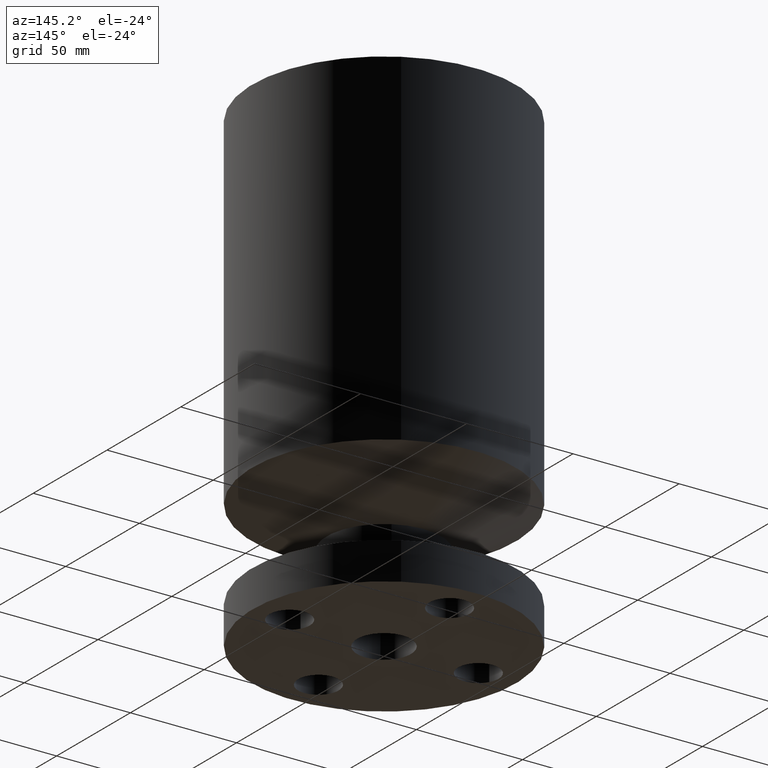
[diagram: clean part render]
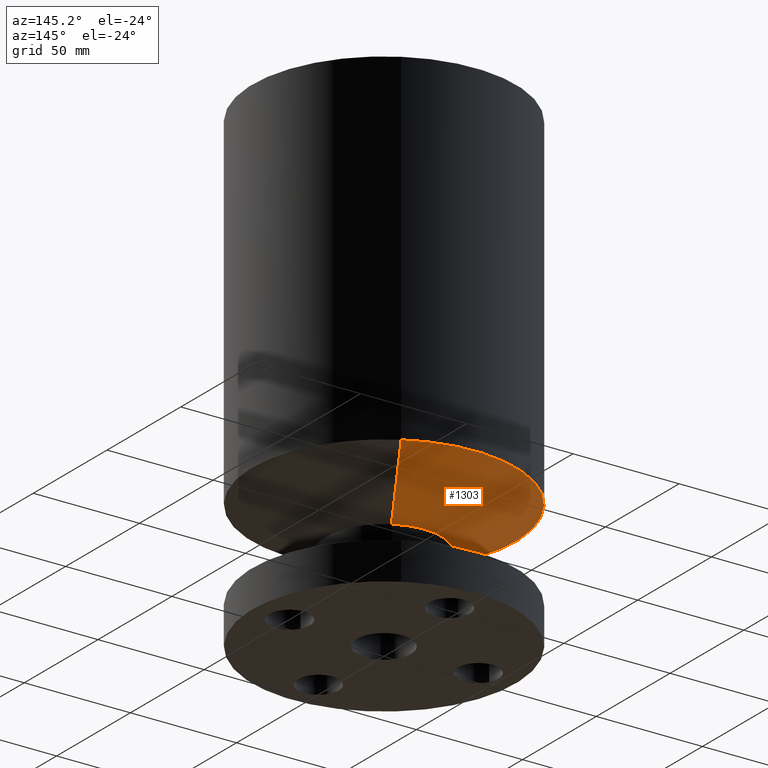
[diagram: same view with one face highlighted and labeled with its STEP entity id]
A machine part, auxiliary view. The second image highlights one B-rep face of the part: STEP entity #1303.
In plain terms, the highlighted conical surface has half-angle 60 deg.
Its self-contained STEP definition (entity closure, byte-faithful):
#738=AXIS2_PLACEMENT_3D('Circle Axis2P3D',#736,#737,$) ;
#1264=AXIS2_PLACEMENT_3D('Cone Axis2P3D',#1261,#1262,#1263) ;
#1294=AXIS2_PLACEMENT_3D('Circle Axis2P3D',#1292,#1293,$) ;
#714=CARTESIAN_POINT('Vertex',(0.508191070922,0.930237515608,1.57000000001)) ;
#721=CARTESIAN_POINT('Vertex',(-0.508191070922,-0.930237515608,1.57000000001)) ;
#736=CARTESIAN_POINT('Axis2P3D Location',(0.,0.,1.57000000001)) ;
#1261=CARTESIAN_POINT('Axis2P3D Location',(0.,0.,1.57000000001)) ;
#1266=CARTESIAN_POINT('Line Origine',(0.838994692561,1.53576948331,1.96837168575)) ;
#1270=CARTESIAN_POINT('Vertex',(1.1697983142,2.14130145102,2.36674337149)) ;
#1277=CARTESIAN_POINT('Vertex',(-1.1697983142,-2.14130145102,2.36674337149)) ;
#1280=CARTESIAN_POINT('Line Origine',(-0.838994692561,-1.53576948331,1.96837168575)) ;
#1292=CARTESIAN_POINT('Axis2P3D Location',(0.,0.,2.36674337149)) ;
#737=DIRECTION('Axis2P3D Direction',(0.,0.,-0.0393700787402)) ;
#1262=DIRECTION('Axis2P3D Direction',(-0.,-0.,0.0393700787402)) ;
#1263=DIRECTION('Axis2P3D XDirection',(0.0188750212049,0.0345504945626,0.)) ;
#1267=DIRECTION('Vector Direction',(0.0163462478604,0.0299216060045,0.0196850393701)) ;
#1281=DIRECTION('Vector Direction',(-0.0163462478604,-0.0299216060045,0.0196850393701)) ;
#1293=DIRECTION('Axis2P3D Direction',(-0.,0.,0.0393700787402)) ;
#1268=VECTOR('Line Direction',#1267,0.0393700787402) ;
#1282=VECTOR('Line Direction',#1281,0.0393700787402) ;
#1298=ORIENTED_EDGE('',*,*,#740,.F.) ;
#1299=ORIENTED_EDGE('',*,*,#1284,.T.) ;
#1300=ORIENTED_EDGE('',*,*,#1296,.T.) ;
#1301=ORIENTED_EDGE('',*,*,#1272,.F.) ;
#1303=ADVANCED_FACE('PartBody',(#1302),#1265,.T.) ;
#739=CIRCLE('generated circle',#738,1.06) ;
#1295=CIRCLE('generated circle',#1294,2.44000000001) ;
#1265=CONICAL_SURFACE('Cone',#1264,1.06,1.0471975512) ;
#740=EDGE_CURVE('',#722,#715,#739,.T.) ;
#1272=EDGE_CURVE('',#715,#1271,#1269,.T.) ;
#1284=EDGE_CURVE('',#722,#1278,#1283,.T.) ;
#1296=EDGE_CURVE('',#1278,#1271,#1295,.F.) ;
#1297=EDGE_LOOP('',(#1298,#1299,#1300,#1301)) ;
#1302=FACE_OUTER_BOUND('',#1297,.T.) ;
#1269=LINE('Line',#1266,#1268) ;
#1283=LINE('Line',#1280,#1282) ;
#715=VERTEX_POINT('',#714) ;
#722=VERTEX_POINT('',#721) ;
#1271=VERTEX_POINT('',#1270) ;
#1278=VERTEX_POINT('',#1277) ;